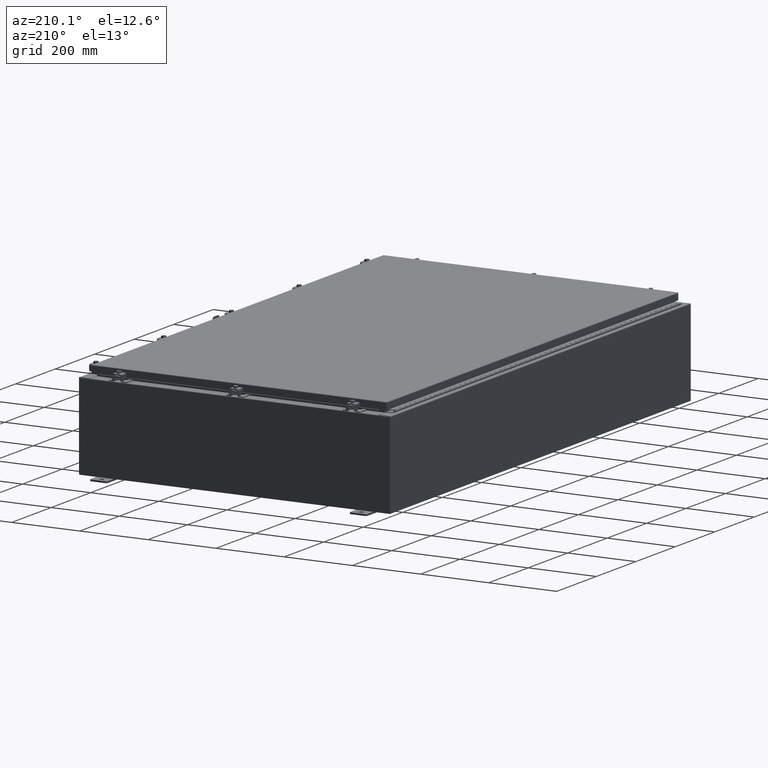
[diagram: clean part render]
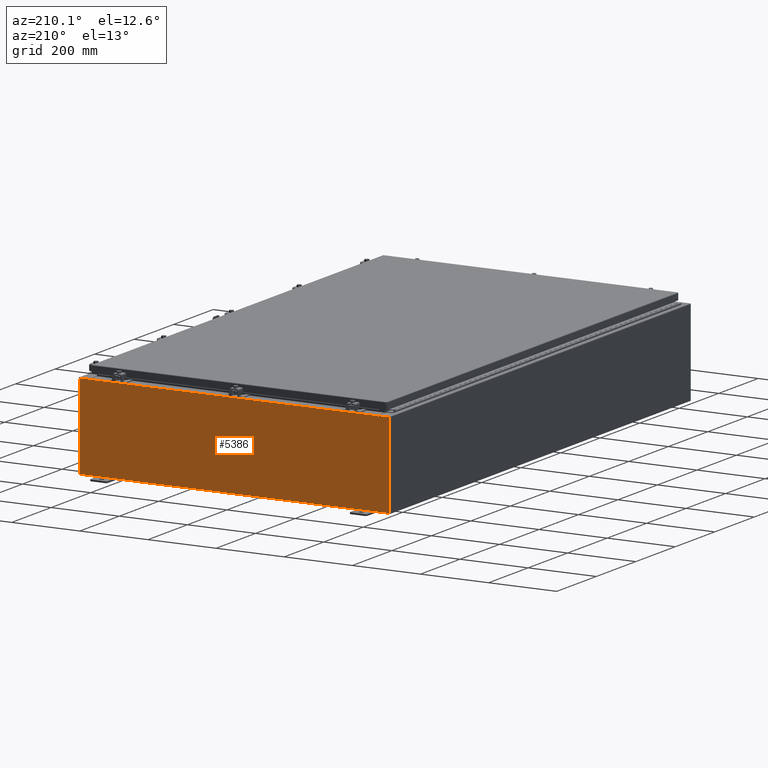
[diagram: same view with one face highlighted and labeled with its STEP entity id]
A machine part, auxiliary view. The second image highlights one B-rep face of the part: STEP entity #5386.
In plain terms, the highlighted planar face has unit normal (0, -1, 0).
Its self-contained STEP definition (entity closure, byte-faithful):
#373 = ORIENTED_EDGE ( 'NONE', *, *, #4544, .T. ) ;
#998 = CARTESIAN_POINT ( 'NONE',  ( -16.63720000000000400, -7.171100983368691200E-016, 4.912300000000000100 ) ) ;
#1015 = CARTESIAN_POINT ( 'NONE',  ( 16.67455000000000000, 0.0000000000000000000, 4.874950000000000100 ) ) ;
#1189 = DIRECTION ( 'NONE',  ( 0.0000000000000000000, 0.0000000000000000000, -1.000000000000000000 ) ) ;
#2721 = VECTOR ( 'NONE', #1189, 39.37007874015748100 ) ;
#3830 = DIRECTION ( 'NONE',  ( -0.0000000000000000000, -0.0000000000000000000, 1.000000000000000000 ) ) ;
#4273 = LINE ( 'NONE', #59479, #2721 ) ;
#4544 = EDGE_CURVE ( 'NONE', #28075, #47742, #11360, .T. ) ;
#5386 = ADVANCED_FACE ( 'NONE', ( #49287 ), #26321, .F. ) ;
#6228 = CARTESIAN_POINT ( 'NONE',  ( 17.92530000000000000, 0.0000000000000000000, 4.925300000000000000 ) ) ;
#6434 = DIRECTION ( 'NONE',  ( 0.0000000000000000000, 0.0000000000000000000, -1.000000000000000000 ) ) ;
#7604 = VERTEX_POINT ( 'NONE', #37656 ) ;
#7907 = CARTESIAN_POINT ( 'NONE',  ( -16.65587500000000200, 0.0000000000000000000, 4.874950000000000100 ) ) ;
#8469 = CARTESIAN_POINT ( 'NONE',  ( 17.92530000000000000, 0.0000000000000000000, -4.925300000000000000 ) ) ;
#8818 = LINE ( 'NONE', #33657, #46112 ) ;
#10586 = VERTEX_POINT ( 'NONE', #35362 ) ;
#10889 = VECTOR ( 'NONE', #60789, 39.37007874015748100 ) ;
#11360 = LINE ( 'NONE', #998, #61639 ) ;
#12233 = CARTESIAN_POINT ( 'NONE',  ( 16.63720000000000400, 0.0000000000000000000, 4.912300000000000100 ) ) ;
#12806 = DIRECTION ( 'NONE',  ( 0.0000000000000000000, 0.0000000000000000000, -1.000000000000000000 ) ) ;
#14709 = EDGE_CURVE ( 'NONE', #25488, #52038, #25926, .T. ) ;
#14910 = EDGE_CURVE ( 'NONE', #51517, #26494, #23649, .T. ) ;
#15125 = LINE ( 'NONE', #17965, #26549 ) ;
#16439 = DIRECTION ( 'NONE',  ( 1.000000000000000000, 0.0000000000000000000, 0.0000000000000000000 ) ) ;
#16448 = CARTESIAN_POINT ( 'NONE',  ( -17.92530000000000000, 0.0000000000000000000, 4.925300000000000000 ) ) ;
#17836 = ORIENTED_EDGE ( 'NONE', *, *, #22567, .F. ) ;
#17965 = CARTESIAN_POINT ( 'NONE',  ( 16.67454999999957700, -0.0000000000000000000, -1.447541957108341500E-012 ) ) ;
#18873 = AXIS2_PLACEMENT_3D ( 'NONE', #7907, #41971, #12806 ) ;
#18887 = ORIENTED_EDGE ( 'NONE', *, *, #55770, .T. ) ;
#20411 = EDGE_CURVE ( 'NONE', #28401, #46546, #36823, .T. ) ;
#21608 = LINE ( 'NONE', #25815, #45929 ) ;
#22251 = ORIENTED_EDGE ( 'NONE', *, *, #49097, .T. ) ;
#22567 = EDGE_CURVE ( 'NONE', #33029, #26494, #40267, .T. ) ;
#23649 = LINE ( 'NONE', #16448, #49441 ) ;
#25418 = ORIENTED_EDGE ( 'NONE', *, *, #39206, .F. ) ;
#25446 = DIRECTION ( 'NONE',  ( 0.0000000000000000000, -0.0000000000000000000, -1.000000000000000000 ) ) ;
#25488 = VERTEX_POINT ( 'NONE', #1015 ) ;
#25517 = DIRECTION ( 'NONE',  ( 0.0000000000000000000, -1.000000000000000000, 0.0000000000000000000 ) ) ;
#25576 = CARTESIAN_POINT ( 'NONE',  ( -16.63720000000000400, -7.171100983368691200E-016, 4.912300000000000100 ) ) ;
#25815 = CARTESIAN_POINT ( 'NONE',  ( -17.92530000000000000, 0.0000000000000000000, 4.925300000000000000 ) ) ;
#25915 = CARTESIAN_POINT ( 'NONE',  ( 0.0000000000000000000, 0.0000000000000000000, 0.0000000000000000000 ) ) ;
#25926 = CIRCLE ( 'NONE', #28412, 0.01867499999999949400 ) ;
#25987 = DIRECTION ( 'NONE',  ( 0.0000000000000000000, 0.0000000000000000000, -1.000000000000000000 ) ) ;
#26050 = DIRECTION ( 'NONE',  ( -0.0000000000000000000, 1.000000000000000000, -0.0000000000000000000 ) ) ;
#26181 = CARTESIAN_POINT ( 'NONE',  ( 16.65587500000000200, 0.0000000000000000000, 4.874950000000000100 ) ) ;
#26321 = PLANE ( 'NONE',  #54300 ) ;
#26494 = VERTEX_POINT ( 'NONE', #41417 ) ;
#26549 = VECTOR ( 'NONE', #57106, 39.37007874015748100 ) ;
#26752 = EDGE_LOOP ( 'NONE', ( #17836, #62890, #25418, #373, #33540, #27172, #51284, #22251, #54532, #45810, #18887, #33824 ) ) ;
#27172 = ORIENTED_EDGE ( 'NONE', *, *, #14709, .F. ) ;
#28075 = VERTEX_POINT ( 'NONE', #25576 ) ;
#28401 = VERTEX_POINT ( 'NONE', #8469 ) ;
#28412 = AXIS2_PLACEMENT_3D ( 'NONE', #26181, #26050, #25987 ) ;
#28735 = CARTESIAN_POINT ( 'NONE',  ( -16.67455000000000000, -0.0000000000000000000, 0.0000000000000000000 ) ) ;
#30614 = CARTESIAN_POINT ( 'NONE',  ( -16.63720000000000400, -0.0000000000000000000, 4.874950000000000100 ) ) ;
#33029 = VERTEX_POINT ( 'NONE', #59305 ) ;
#33540 = ORIENTED_EDGE ( 'NONE', *, *, #38379, .F. ) ;
#33657 = CARTESIAN_POINT ( 'NONE',  ( 16.63720000000000400, 0.0000000000000000000, 0.0000000000000000000 ) ) ;
#33824 = ORIENTED_EDGE ( 'NONE', *, *, #14910, .T. ) ;
#35362 = CARTESIAN_POINT ( 'NONE',  ( 17.92530000000000000, 0.0000000000000000000, 4.925300000000000000 ) ) ;
#36418 = VERTEX_POINT ( 'NONE', #30614 ) ;
#36823 = LINE ( 'NONE', #46323, #10889 ) ;
#37656 = CARTESIAN_POINT ( 'NONE',  ( 16.67455000000000700, 0.0000000000000000000, 4.925300000000000000 ) ) ;
#37820 = LINE ( 'NONE', #6228, #62139 ) ;
#37872 = CARTESIAN_POINT ( 'NONE',  ( -17.92530000000000000, 0.0000000000000000000, 4.925300000000000000 ) ) ;
#38379 = EDGE_CURVE ( 'NONE', #52038, #47742, #8818, .T. ) ;
#38529 = DIRECTION ( 'NONE',  ( 0.0000000000000000000, 0.0000000000000000000, 1.000000000000000000 ) ) ;
#39206 = EDGE_CURVE ( 'NONE', #28075, #36418, #4273, .T. ) ;
#40267 = LINE ( 'NONE', #28735, #51696 ) ;
#41417 = CARTESIAN_POINT ( 'NONE',  ( -16.67455000000000000, 0.0000000000000000000, 4.925300000000000000 ) ) ;
#41971 = DIRECTION ( 'NONE',  ( -0.0000000000000000000, 1.000000000000000000, -0.0000000000000000000 ) ) ;
#43414 = DIRECTION ( 'NONE',  ( 0.0000000000000000000, 0.0000000000000000000, 1.000000000000000000 ) ) ;
#45810 = ORIENTED_EDGE ( 'NONE', *, *, #20411, .T. ) ;
#45929 = VECTOR ( 'NONE', #59830, 39.37007874015748100 ) ;
#46112 = VECTOR ( 'NONE', #38529, 39.37007874015748100 ) ;
#46323 = CARTESIAN_POINT ( 'NONE',  ( -17.92530000000000000, 0.0000000000000000000, -4.925300000000000000 ) ) ;
#46465 = EDGE_CURVE ( 'NONE', #10586, #28401, #37820, .T. ) ;
#46546 = VERTEX_POINT ( 'NONE', #50690 ) ;
#47742 = VERTEX_POINT ( 'NONE', #12233 ) ;
#49097 = EDGE_CURVE ( 'NONE', #7604, #10586, #21608, .T. ) ;
#49287 = FACE_OUTER_BOUND ( 'NONE', #26752, .T. ) ;
#49441 = VECTOR ( 'NONE', #16439, 39.37007874015748100 ) ;
#50690 = CARTESIAN_POINT ( 'NONE',  ( -17.92530000000000000, 0.0000000000000000000, -4.925300000000000000 ) ) ;
#51284 = ORIENTED_EDGE ( 'NONE', *, *, #51783, .F. ) ;
#51517 = VERTEX_POINT ( 'NONE', #59879 ) ;
#51696 = VECTOR ( 'NONE', #43414, 39.37007874015748100 ) ;
#51783 = EDGE_CURVE ( 'NONE', #7604, #25488, #15125, .T. ) ;
#52038 = VERTEX_POINT ( 'NONE', #59167 ) ;
#54300 = AXIS2_PLACEMENT_3D ( 'NONE', #25915, #25517, #25446 ) ;
#54532 = ORIENTED_EDGE ( 'NONE', *, *, #46465, .T. ) ;
#54753 = CIRCLE ( 'NONE', #18873, 0.01867499999999949400 ) ;
#55770 = EDGE_CURVE ( 'NONE', #46546, #51517, #56626, .T. ) ;
#56626 = LINE ( 'NONE', #37872, #59660 ) ;
#57106 = DIRECTION ( 'NONE',  ( -8.681145560800009800E-014, 0.0000000000000000000, -1.000000000000000000 ) ) ;
#57584 = EDGE_CURVE ( 'NONE', #36418, #33029, #54753, .T. ) ;
#59167 = CARTESIAN_POINT ( 'NONE',  ( 16.63720000000000400, 0.0000000000000000000, 4.874950000000000100 ) ) ;
#59305 = CARTESIAN_POINT ( 'NONE',  ( -16.67455000000000000, 0.0000000000000000000, 4.874950000000000100 ) ) ;
#59479 = CARTESIAN_POINT ( 'NONE',  ( -16.63720000000000400, -0.0000000000000000000, 0.0000000000000000000 ) ) ;
#59660 = VECTOR ( 'NONE', #3830, 39.37007874015748100 ) ;
#59830 = DIRECTION ( 'NONE',  ( 1.000000000000000000, 0.0000000000000000000, 0.0000000000000000000 ) ) ;
#59879 = CARTESIAN_POINT ( 'NONE',  ( -17.92530000000000000, 0.0000000000000000000, 4.925300000000000000 ) ) ;
#60789 = DIRECTION ( 'NONE',  ( -1.000000000000000000, -0.0000000000000000000, -0.0000000000000000000 ) ) ;
#61066 = DIRECTION ( 'NONE',  ( 1.000000000000000000, 0.0000000000000000000, 0.0000000000000000000 ) ) ;
#61639 = VECTOR ( 'NONE', #61066, 39.37007874015748100 ) ;
#62139 = VECTOR ( 'NONE', #6434, 39.37007874015748100 ) ;
#62890 = ORIENTED_EDGE ( 'NONE', *, *, #57584, .F. ) ;